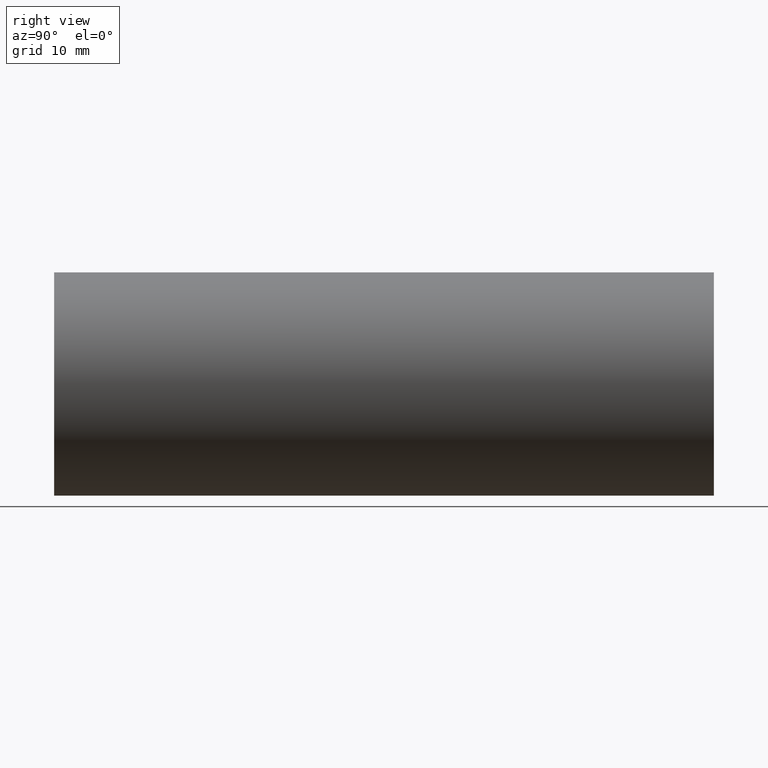
[diagram: clean part render]
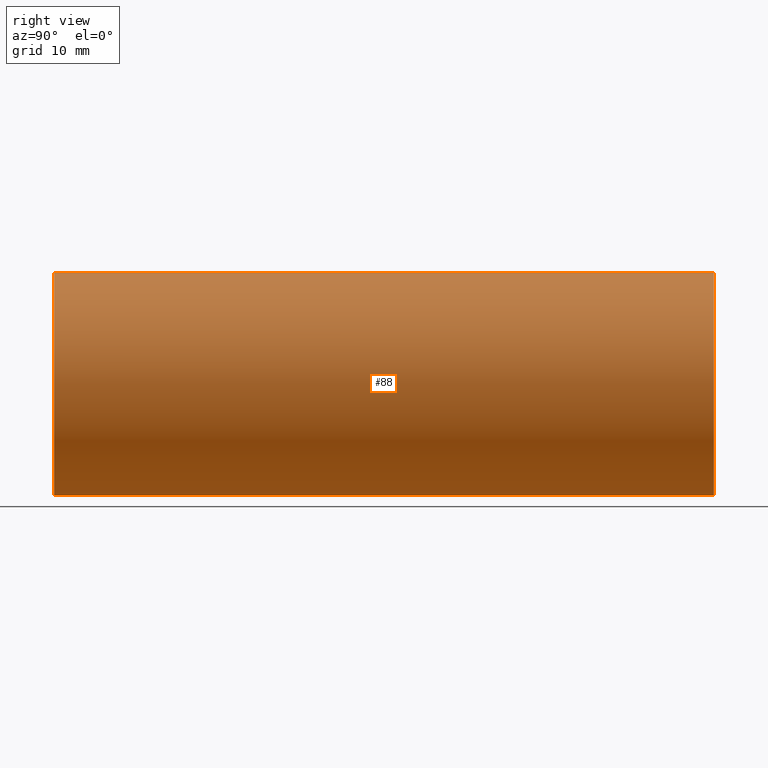
[diagram: same view with one face highlighted and labeled with its STEP entity id]
A machine part, right view. The second image highlights one B-rep face of the part: STEP entity #88.
In plain terms, the highlighted cylindrical surface (partial cylindrical patch) has radius 9.525 mm, axis along (-0, 1, -0).
Its self-contained STEP definition (entity closure, byte-faithful):
#2 = DIRECTION ( 'NONE',  ( -0.0000000000000000000, 1.000000000000000000, -0.0000000000000000000 ) ) ;
#7 = LINE ( 'NONE', #28, #565 ) ;
#28 = CARTESIAN_POINT ( 'NONE',  ( 1.166476076187856400E-015, 161.3761669434274500, -9.525000000000019900 ) ) ;
#45 = DIRECTION ( 'NONE',  ( 0.0000000000000000000, 0.0000000000000000000, 1.000000000000000000 ) ) ;
#47 = DIRECTION ( 'NONE',  ( -0.0000000000000000000, 1.000000000000000000, -0.0000000000000000000 ) ) ;
#57 = EDGE_CURVE ( 'NONE', #266, #207, #100, .T. ) ;
#84 = DIRECTION ( 'NONE',  ( -0.0000000000000000000, 1.000000000000000000, -0.0000000000000000000 ) ) ;
#88 = ADVANCED_FACE ( 'NONE', ( #408 ), #118, .T. ) ;
#90 = CARTESIAN_POINT ( 'NONE',  ( 0.0000000000000000000, -2.775557561562891400E-014, 9.525000000000019900 ) ) ;
#100 = LINE ( 'NONE', #362, #299 ) ;
#112 = DIRECTION ( 'NONE',  ( 0.0000000000000000000, 0.0000000000000000000, 1.000000000000000000 ) ) ;
#113 = AXIS2_PLACEMENT_3D ( 'NONE', #275, #530, #112 ) ;
#118 = CYLINDRICAL_SURFACE ( 'NONE', #535, 9.525000000000019900 ) ;
#123 = DIRECTION ( 'NONE',  ( -0.0000000000000000000, 1.000000000000000000, -0.0000000000000000000 ) ) ;
#129 = ORIENTED_EDGE ( 'NONE', *, *, #311, .F. ) ;
#131 = DIRECTION ( 'NONE',  ( 0.0000000000000000000, 0.0000000000000000000, 1.000000000000000000 ) ) ;
#149 = ORIENTED_EDGE ( 'NONE', *, *, #57, .F. ) ;
#182 = EDGE_LOOP ( 'NONE', ( #442, #337, #129, #149 ) ) ;
#190 = CARTESIAN_POINT ( 'NONE',  ( 0.0000000000000000000, 56.29999999999999000, 0.0000000000000000000 ) ) ;
#207 = VERTEX_POINT ( 'NONE', #421 ) ;
#221 = AXIS2_PLACEMENT_3D ( 'NONE', #190, #2, #45 ) ;
#243 = CARTESIAN_POINT ( 'NONE',  ( 1.166476076187856400E-015, 56.29999999999999000, -9.525000000000019900 ) ) ;
#266 = VERTEX_POINT ( 'NONE', #90 ) ;
#275 = CARTESIAN_POINT ( 'NONE',  ( 0.0000000000000000000, -2.775557561562891400E-014, 0.0000000000000000000 ) ) ;
#295 = EDGE_CURVE ( 'NONE', #509, #518, #7, .T. ) ;
#299 = VECTOR ( 'NONE', #123, 1000.000000000000000 ) ;
#311 = EDGE_CURVE ( 'NONE', #207, #518, #373, .T. ) ;
#337 = ORIENTED_EDGE ( 'NONE', *, *, #295, .T. ) ;
#362 = CARTESIAN_POINT ( 'NONE',  ( 0.0000000000000000000, 161.3761669434274500, 9.525000000000019900 ) ) ;
#373 = CIRCLE ( 'NONE', #221, 9.525000000000019900 ) ;
#402 = CIRCLE ( 'NONE', #113, 9.525000000000019900 ) ;
#408 = FACE_OUTER_BOUND ( 'NONE', #182, .T. ) ;
#421 = CARTESIAN_POINT ( 'NONE',  ( 0.0000000000000000000, 56.29999999999999000, 9.525000000000019900 ) ) ;
#442 = ORIENTED_EDGE ( 'NONE', *, *, #496, .T. ) ;
#496 = EDGE_CURVE ( 'NONE', #266, #509, #402, .T. ) ;
#509 = VERTEX_POINT ( 'NONE', #523 ) ;
#518 = VERTEX_POINT ( 'NONE', #243 ) ;
#523 = CARTESIAN_POINT ( 'NONE',  ( 1.166476076187856400E-015, -2.775557561562891400E-014, -9.525000000000019900 ) ) ;
#530 = DIRECTION ( 'NONE',  ( -0.0000000000000000000, 1.000000000000000000, -0.0000000000000000000 ) ) ;
#535 = AXIS2_PLACEMENT_3D ( 'NONE', #593, #84, #131 ) ;
#565 = VECTOR ( 'NONE', #47, 1000.000000000000000 ) ;
#593 = CARTESIAN_POINT ( 'NONE',  ( 0.0000000000000000000, 161.3761669434274500, 0.0000000000000000000 ) ) ;